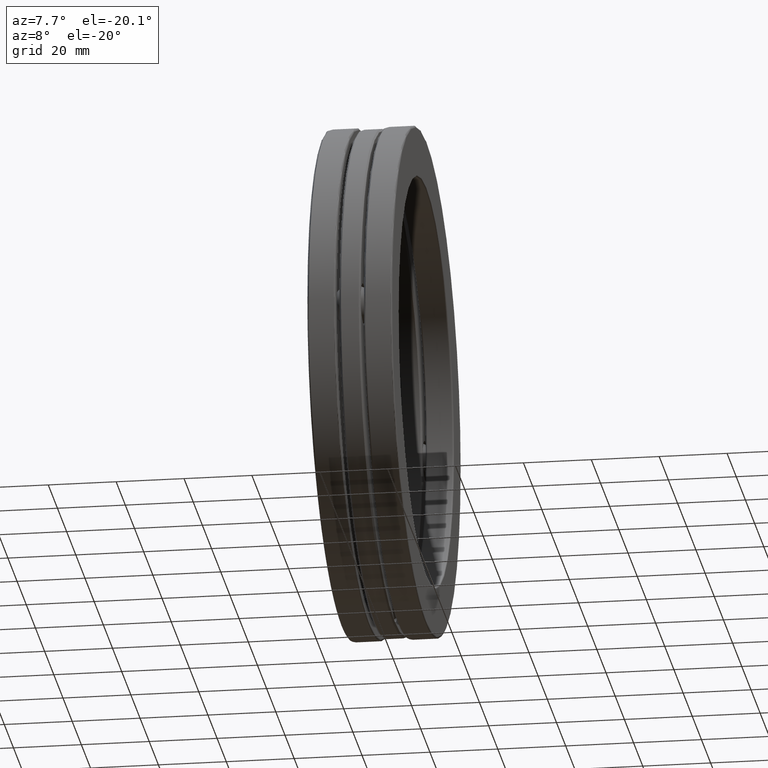
[diagram: clean part render]
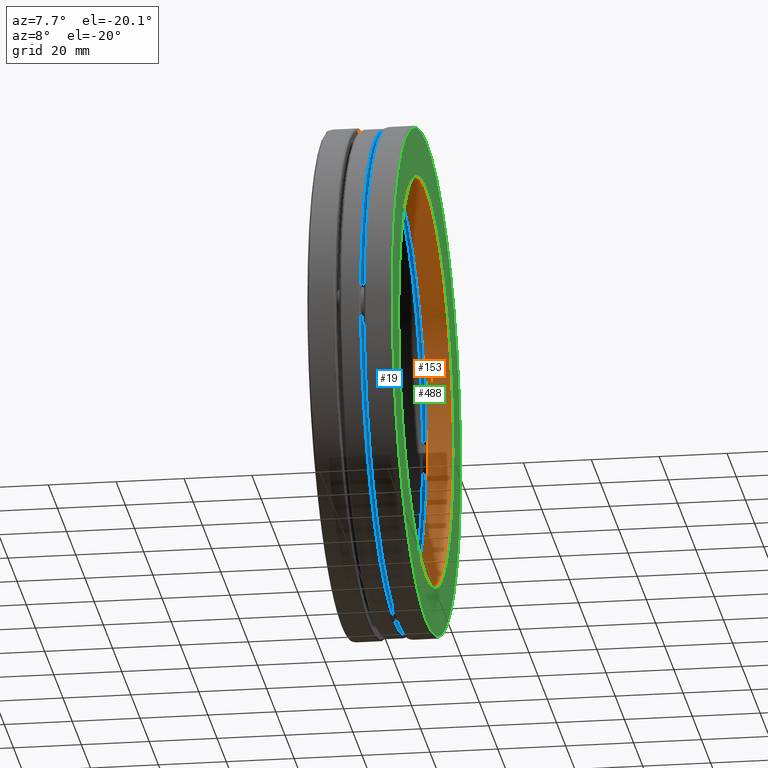
[diagram: same view with three faces highlighted in distinct colors, each labeled with its STEP entity id]
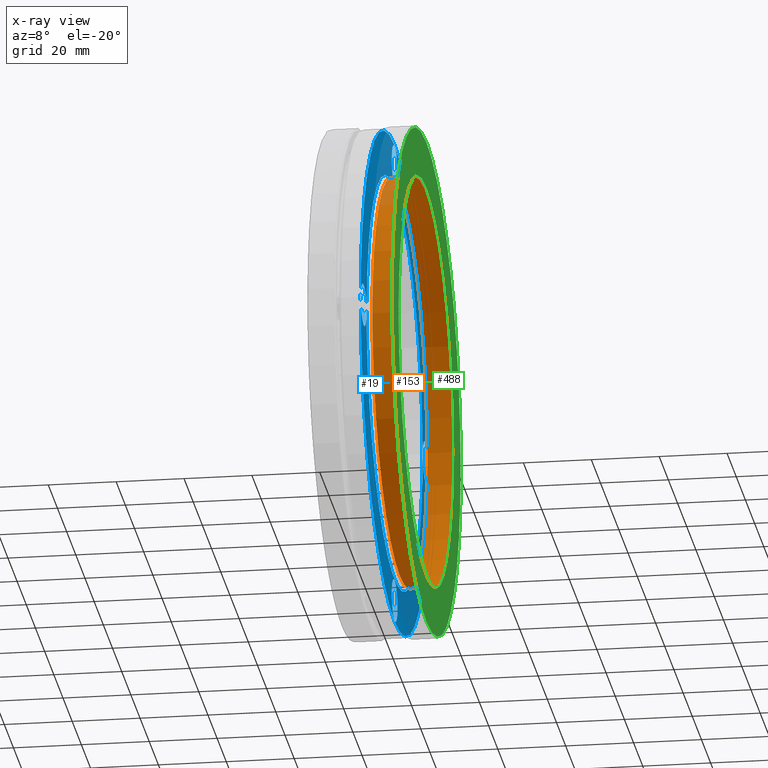
[diagram: x-ray of the same camera — body ghosted, the three highlighted faces saturated]
A machine part, auxiliary view with three faces highlighted in distinct colors.
The next image is the same camera in x-ray (body ghosted, the three faces saturated) — at least one of them is partly hidden behind the body in this view.
Their STEP definitions:

[orange] entity #153 — the highlighted cylindrical surface (bore or boss wall) has radius 59.9948 mm, axis along (-1, -0, -0).
#37 = CIRCLE ( 'NONE', #592, 2.362000000000000100 ) ;
#63 = EDGE_LOOP ( 'NONE', ( #108 ) ) ;
#65 = FACE_OUTER_BOUND ( 'NONE', #63, .T. ) ;
#108 = ORIENTED_EDGE ( 'NONE', *, *, #448, .F. ) ;
#111 = CARTESIAN_POINT ( 'NONE',  ( 0.4720000000000014700, 0.0000000000000000000, 2.362000000000000100 ) ) ;
#153 = ADVANCED_FACE ( 'NONE', ( #779, #65 ), #481, .F. ) ;
#161 = DIRECTION ( 'NONE',  ( -1.000000000000000000, -0.0000000000000000000, -0.0000000000000000000 ) ) ;
#172 = CARTESIAN_POINT ( 'NONE',  ( 0.4720000000000014700, 0.0000000000000000000, 0.0000000000000000000 ) ) ;
#180 = CARTESIAN_POINT ( 'NONE',  ( 0.0000000000000000000, 0.0000000000000000000, 0.0000000000000000000 ) ) ;
#226 = DIRECTION ( 'NONE',  ( 0.0000000000000000000, 0.0000000000000000000, 1.000000000000000000 ) ) ;
#277 = DIRECTION ( 'NONE',  ( 0.0000000000000000000, 0.0000000000000000000, 1.000000000000000000 ) ) ;
#335 = CIRCLE ( 'NONE', #401, 2.362000000000000100 ) ;
#366 = VERTEX_POINT ( 'NONE', #111 ) ;
#401 = AXIS2_PLACEMENT_3D ( 'NONE', #653, #161, #226 ) ;
#411 = AXIS2_PLACEMENT_3D ( 'NONE', #180, #676, #277 ) ;
#448 = EDGE_CURVE ( 'NONE', #366, #366, #37, .T. ) ;
#481 = CYLINDRICAL_SURFACE ( 'NONE', #411, 2.362000000000000100 ) ;
#592 = AXIS2_PLACEMENT_3D ( 'NONE', #172, #609, #673 ) ;
#609 = DIRECTION ( 'NONE',  ( -1.000000000000000000, -0.0000000000000000000, -0.0000000000000000000 ) ) ;
#611 = CARTESIAN_POINT ( 'NONE',  ( 0.1840032800000013000, 0.0000000000000000000, 2.362000000000000100 ) ) ;
#653 = CARTESIAN_POINT ( 'NONE',  ( 0.1840032800000013000, 0.0000000000000000000, 0.0000000000000000000 ) ) ;
#673 = DIRECTION ( 'NONE',  ( 0.0000000000000000000, 0.0000000000000000000, 1.000000000000000000 ) ) ;
#676 = DIRECTION ( 'NONE',  ( -1.000000000000000000, -0.0000000000000000000, -0.0000000000000000000 ) ) ;
#705 = ORIENTED_EDGE ( 'NONE', *, *, #714, .T. ) ;
#714 = EDGE_CURVE ( 'NONE', #774, #774, #335, .T. ) ;
#738 = EDGE_LOOP ( 'NONE', ( #705 ) ) ;
#774 = VERTEX_POINT ( 'NONE', #611 ) ;
#779 = FACE_OUTER_BOUND ( 'NONE', #738, .T. ) ;

[blue] entity #19 — the highlighted planar face has unit normal (1, 0, 0).
#15 = ORIENTED_EDGE ( 'NONE', *, *, #645, .F. ) ;
#19 = ADVANCED_FACE ( 'NONE', ( #511, #82, #470, #106, #729, #214 ), #580, .T. ) ;
#39 = CARTESIAN_POINT ( 'NONE',  ( 0.1230000000000000700, 0.0000000000000000000, 2.402000000000000100 ) ) ;
#45 = EDGE_LOOP ( 'NONE', ( #420 ) ) ;
#82 = FACE_BOUND ( 'NONE', #45, .T. ) ;
#84 = EDGE_LOOP ( 'NONE', ( #205 ) ) ;
#92 = EDGE_CURVE ( 'NONE', #650, #650, #491, .T. ) ;
#106 = FACE_BOUND ( 'NONE', #690, .T. ) ;
#112 = CIRCLE ( 'NONE', #322, 2.913000000000000300 ) ;
#115 = DIRECTION ( 'NONE',  ( 0.0000000000000000000, 1.000000000000000000, -1.106011333467309800E-014 ) ) ;
#122 = CARTESIAN_POINT ( 'NONE',  ( 0.1230000000000000700, 0.0000000000000000000, 0.0000000000000000000 ) ) ;
#123 = ORIENTED_EDGE ( 'NONE', *, *, #503, .F. ) ;
#124 = AXIS2_PLACEMENT_3D ( 'NONE', #263, #507, #441 ) ;
#133 = VERTEX_POINT ( 'NONE', #433 ) ;
#142 = DIRECTION ( 'NONE',  ( 0.0000000000000000000, 0.0000000000000000000, 1.000000000000000000 ) ) ;
#205 = ORIENTED_EDGE ( 'NONE', *, *, #538, .T. ) ;
#214 = FACE_OUTER_BOUND ( 'NONE', #798, .T. ) ;
#219 = DIRECTION ( 'NONE',  ( 1.000000000000000000, 0.0000000000000000000, 0.0000000000000000000 ) ) ;
#233 = DIRECTION ( 'NONE',  ( 0.0000000000000000000, 0.0000000000000000000, -1.000000000000000000 ) ) ;
#248 = ORIENTED_EDGE ( 'NONE', *, *, #575, .F. ) ;
#263 = CARTESIAN_POINT ( 'NONE',  ( 0.1230000000000000300, -2.657499999999999800, 0.0000000000000000000 ) ) ;
#264 = DIRECTION ( 'NONE',  ( 1.000000000000000000, 0.0000000000000000000, 0.0000000000000000000 ) ) ;
#269 = DIRECTION ( 'NONE',  ( 0.0000000000000000000, 0.0000000000000000000, 1.000000000000000000 ) ) ;
#278 = AXIS2_PLACEMENT_3D ( 'NONE', #122, #631, #269 ) ;
#279 = VERTEX_POINT ( 'NONE', #803 ) ;
#289 = DIRECTION ( 'NONE',  ( 0.0000000000000000000, -1.000000000000000000, 4.424045333869238700E-015 ) ) ;
#293 = CARTESIAN_POINT ( 'NONE',  ( 0.1230000000000000300, -2.657499999999999800, 0.2470000000000007500 ) ) ;
#300 = DIRECTION ( 'NONE',  ( 1.000000000000000000, 0.0000000000000000000, 0.0000000000000000000 ) ) ;
#313 = DIRECTION ( 'NONE',  ( 1.000000000000000000, -0.0000000000000000000, 0.0000000000000000000 ) ) ;
#314 = EDGE_CURVE ( 'NONE', #279, #279, #789, .T. ) ;
#318 = DIRECTION ( 'NONE',  ( 0.0000000000000000000, 0.0000000000000000000, -1.000000000000000000 ) ) ;
#322 = AXIS2_PLACEMENT_3D ( 'NONE', #463, #776, #142 ) ;
#343 = EDGE_LOOP ( 'NONE', ( #15 ) ) ;
#344 = ORIENTED_EDGE ( 'NONE', *, *, #314, .F. ) ;
#387 = VERTEX_POINT ( 'NONE', #440 ) ;
#409 = CARTESIAN_POINT ( 'NONE',  ( 0.1230000000000000300, -9.278611657975625200E-015, -2.657499999999999800 ) ) ;
#420 = ORIENTED_EDGE ( 'NONE', *, *, #92, .F. ) ;
#427 = CARTESIAN_POINT ( 'NONE',  ( 0.1230000000000000300, 0.2470000000000285600, 2.657499999999997100 ) ) ;
#433 = CARTESIAN_POINT ( 'NONE',  ( 0.1230000000000000000, 0.0000000000000000000, 2.913000000000000300 ) ) ;
#440 = CARTESIAN_POINT ( 'NONE',  ( 0.1230000000000000300, -0.2470000000000100200, -2.657499999999998400 ) ) ;
#441 = DIRECTION ( 'NONE',  ( 0.0000000000000000000, 0.0000000000000000000, 1.000000000000000000 ) ) ;
#455 = AXIS2_PLACEMENT_3D ( 'NONE', #500, #313, #318 ) ;
#463 = CARTESIAN_POINT ( 'NONE',  ( 0.1230000000000000000, 0.0000000000000000000, 0.0000000000000000000 ) ) ;
#470 = FACE_BOUND ( 'NONE', #655, .T. ) ;
#491 = CIRCLE ( 'NONE', #124, 0.2470000000000007500 ) ;
#500 = CARTESIAN_POINT ( 'NONE',  ( 0.1230000000000000300, 2.657499999999999800, 0.0000000000000000000 ) ) ;
#503 = EDGE_CURVE ( 'NONE', #628, #628, #542, .T. ) ;
#507 = DIRECTION ( 'NONE',  ( 1.000000000000000000, 0.0000000000000000000, 0.0000000000000000000 ) ) ;
#511 = FACE_BOUND ( 'NONE', #343, .T. ) ;
#538 = EDGE_CURVE ( 'NONE', #821, #821, #639, .T. ) ;
#542 = CIRCLE ( 'NONE', #728, 0.2470000000000007500 ) ;
#546 = CARTESIAN_POINT ( 'NONE',  ( 0.1230000000000000300, 1.643920270160006700E-017, 0.0000000000000000000 ) ) ;
#575 = EDGE_CURVE ( 'NONE', #133, #133, #112, .T. ) ;
#580 = PLANE ( 'NONE',  #775 ) ;
#628 = VERTEX_POINT ( 'NONE', #427 ) ;
#631 = DIRECTION ( 'NONE',  ( -1.000000000000000000, -0.0000000000000000000, -0.0000000000000000000 ) ) ;
#639 = CIRCLE ( 'NONE', #278, 2.402000000000000100 ) ;
#643 = AXIS2_PLACEMENT_3D ( 'NONE', #409, #219, #289 ) ;
#645 = EDGE_CURVE ( 'NONE', #387, #387, #696, .T. ) ;
#650 = VERTEX_POINT ( 'NONE', #293 ) ;
#655 = EDGE_LOOP ( 'NONE', ( #123 ) ) ;
#690 = EDGE_LOOP ( 'NONE', ( #344 ) ) ;
#696 = CIRCLE ( 'NONE', #643, 0.2470000000000007500 ) ;
#728 = AXIS2_PLACEMENT_3D ( 'NONE', #816, #264, #115 ) ;
#729 = FACE_BOUND ( 'NONE', #84, .T. ) ;
#775 = AXIS2_PLACEMENT_3D ( 'NONE', #546, #300, #233 ) ;
#776 = DIRECTION ( 'NONE',  ( -1.000000000000000000, -0.0000000000000000000, -0.0000000000000000000 ) ) ;
#789 = CIRCLE ( 'NONE', #455, 0.2470000000000007500 ) ;
#798 = EDGE_LOOP ( 'NONE', ( #248 ) ) ;
#803 = CARTESIAN_POINT ( 'NONE',  ( 0.1230000000000000300, 2.657499999999999800, -0.2470000000000007500 ) ) ;
#816 = CARTESIAN_POINT ( 'NONE',  ( 0.1230000000000000300, 2.783583497392687900E-014, 2.657499999999999800 ) ) ;
#821 = VERTEX_POINT ( 'NONE', #39 ) ;

[green] entity #488 — the highlighted planar face has unit normal (1, 0, 0).
#31 = EDGE_LOOP ( 'NONE', ( #504 ) ) ;
#79 = DIRECTION ( 'NONE',  ( 0.0000000000000000000, 0.0000000000000000000, 1.000000000000000000 ) ) ;
#101 = CARTESIAN_POINT ( 'NONE',  ( 0.4920000000000002700, 0.0000000000000000000, 2.932999999999999400 ) ) ;
#110 = VERTEX_POINT ( 'NONE', #736 ) ;
#118 = DIRECTION ( 'NONE',  ( -1.000000000000000000, -0.0000000000000000000, -0.0000000000000000000 ) ) ;
#183 = AXIS2_PLACEMENT_3D ( 'NONE', #625, #118, #515 ) ;
#198 = PLANE ( 'NONE',  #824 ) ;
#296 = CIRCLE ( 'NONE', #183, 2.932999999999999400 ) ;
#332 = ORIENTED_EDGE ( 'NONE', *, *, #605, .T. ) ;
#442 = DIRECTION ( 'NONE',  ( 0.0000000000000000000, 0.0000000000000000000, -1.000000000000000000 ) ) ;
#464 = DIRECTION ( 'NONE',  ( -1.000000000000000000, -0.0000000000000000000, -0.0000000000000000000 ) ) ;
#488 = ADVANCED_FACE ( 'NONE', ( #585, #619 ), #198, .T. ) ;
#504 = ORIENTED_EDGE ( 'NONE', *, *, #527, .F. ) ;
#515 = DIRECTION ( 'NONE',  ( 0.0000000000000000000, 0.0000000000000000000, 1.000000000000000000 ) ) ;
#520 = EDGE_LOOP ( 'NONE', ( #332 ) ) ;
#527 = EDGE_CURVE ( 'NONE', #783, #783, #296, .T. ) ;
#568 = AXIS2_PLACEMENT_3D ( 'NONE', #642, #464, #79 ) ;
#574 = CARTESIAN_POINT ( 'NONE',  ( 0.4920000000000002700, 0.0000000000000000000, 0.0000000000000000000 ) ) ;
#585 = FACE_BOUND ( 'NONE', #520, .T. ) ;
#599 = CIRCLE ( 'NONE', #568, 2.381999999999999700 ) ;
#605 = EDGE_CURVE ( 'NONE', #110, #110, #599, .T. ) ;
#619 = FACE_OUTER_BOUND ( 'NONE', #31, .T. ) ;
#625 = CARTESIAN_POINT ( 'NONE',  ( 0.4920000000000002700, 0.0000000000000000000, 0.0000000000000000000 ) ) ;
#642 = CARTESIAN_POINT ( 'NONE',  ( 0.4920000000000002700, 0.0000000000000000000, 0.0000000000000000000 ) ) ;
#686 = DIRECTION ( 'NONE',  ( 1.000000000000000000, 0.0000000000000000000, 0.0000000000000000000 ) ) ;
#736 = CARTESIAN_POINT ( 'NONE',  ( 0.4920000000000002700, 0.0000000000000000000, 2.381999999999999700 ) ) ;
#783 = VERTEX_POINT ( 'NONE', #101 ) ;
#824 = AXIS2_PLACEMENT_3D ( 'NONE', #574, #686, #442 ) ;